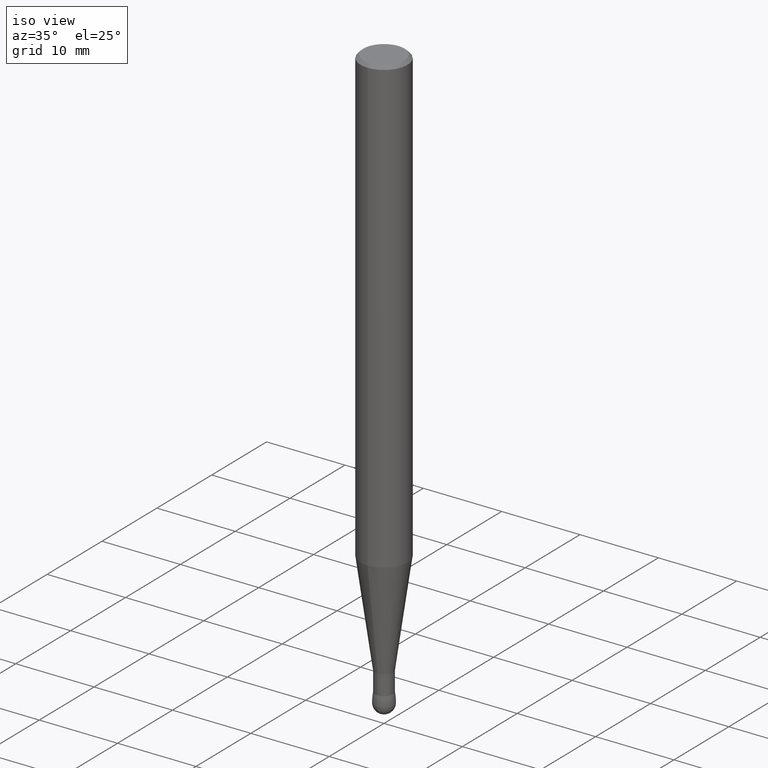
[diagram: clean part render]
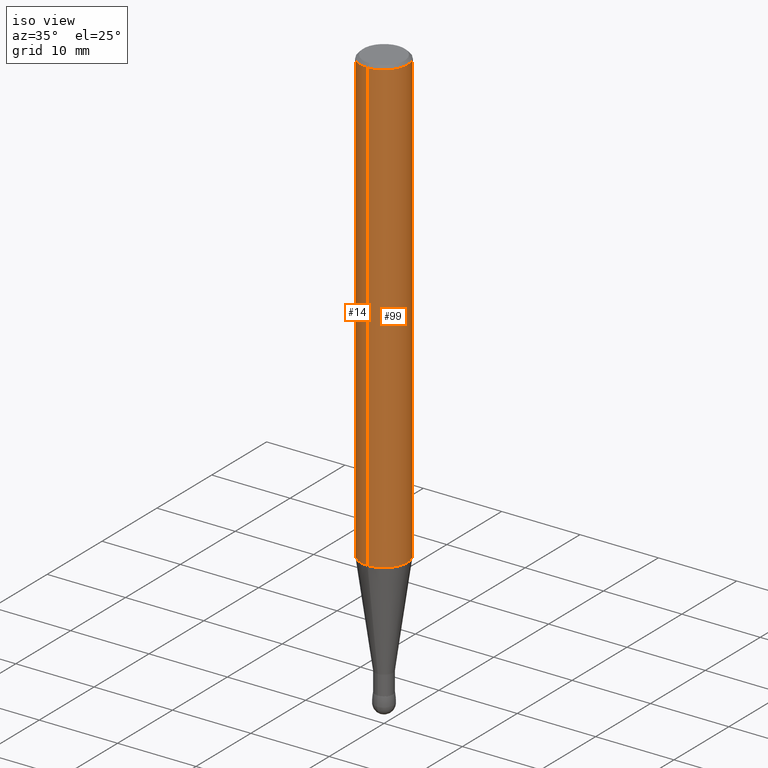
[diagram: same view with one multi-face feature highlighted, each face labeled with its STEP entity id]
A machine part, iso view. The highlighted faces form ONE feature: a constant-radius fillet chain: 2 tangent blend faces with common blend radius 2.9997 mm. The faces share edges in the B-rep.
Their STEP definitions:
[1] entity #14 (Cylinder):
#14 = ADVANCED_FACE ( 'NONE', ( #58 ), #180, .T. ) ;
#27 = VECTOR ( 'NONE', #48, 39.37007874015748143 ) ;
#39 = AXIS2_PLACEMENT_3D ( 'NONE', #195, #312, #464 ) ;
#40 = LINE ( 'NONE', #188, #307 ) ;
#48 = DIRECTION ( 'NONE',  ( 2.443143009213839704E-29, -3.494812012482185664E-15, -1.000000000000000000 ) ) ;
#56 = DIRECTION ( 'NONE',  ( 6.982962677686265922E-15, 1.000000000000000000, -3.487819265831422394E-15 ) ) ;
#58 = FACE_OUTER_BOUND ( 'NONE', #251, .T. ) ;
#92 = VERTEX_POINT ( 'NONE', #301 ) ;
#93 = CARTESIAN_POINT ( 'NONE',  ( 8.391509709327309522E-16, 0.1180999999999916700, -2.275166473293722458 ) ) ;
#94 = VERTEX_POINT ( 'NONE', #412 ) ;
#107 = DIRECTION ( 'NONE',  ( 2.443143009213839704E-29, -3.494812012482185664E-15, -1.000000000000000000 ) ) ;
#110 = ORIENTED_EDGE ( 'NONE', *, *, #348, .T. ) ;
#126 = ORIENTED_EDGE ( 'NONE', *, *, #226, .T. ) ;
#134 = CARTESIAN_POINT ( 'NONE',  ( -8.102248135367445696E-16, -0.1181000000000097527, -2.893699999999999051 ) ) ;
#152 = EDGE_CURVE ( 'NONE', #92, #238, #445, .T. ) ;
#160 = ORIENTED_EDGE ( 'NONE', *, *, #333, .F. ) ;
#180 = CYLINDRICAL_SURFACE ( 'NONE', #432, 0.1180999999999996358 ) ;
#188 = CARTESIAN_POINT ( 'NONE',  ( 8.246878922348163019E-16, 0.1180999999999895328, -2.893700000000000383 ) ) ;
#195 = CARTESIAN_POINT ( 'NONE',  ( 5.558557064025262488E-29, -7.951279121263629209E-15, -2.275166473293722014 ) ) ;
#226 = EDGE_CURVE ( 'NONE', #94, #398, #40, .T. ) ;
#238 = VERTEX_POINT ( 'NONE', #340 ) ;
#251 = EDGE_LOOP ( 'NONE', ( #397, #110, #126, #160 ) ) ;
#287 = CIRCLE ( 'NONE', #39, 0.1180999999999996636 ) ;
#297 = DIRECTION ( 'NONE',  ( 2.443143009213839704E-29, -3.494812012482185664E-15, -1.000000000000000000 ) ) ;
#301 = CARTESIAN_POINT ( 'NONE',  ( -8.102248135368149755E-16, -0.1180999999999996913, -0.01499999999999929168 ) ) ;
#307 = VECTOR ( 'NONE', #107, 39.37007874015748143 ) ;
#311 = CIRCLE ( 'NONE', #484, 0.1180999999999996358 ) ;
#312 = DIRECTION ( 'NONE',  ( 2.443143009213839704E-29, -3.494812012482185664E-15, -1.000000000000000000 ) ) ;
#333 = EDGE_CURVE ( 'NONE', #238, #398, #287, .T. ) ;
#335 = CARTESIAN_POINT ( 'NONE',  ( 7.069722925762087863E-29, -1.011293752051970024E-14, -2.893699999999999939 ) ) ;
#340 = CARTESIAN_POINT ( 'NONE',  ( -8.246878922346900841E-16, -0.1181000000000076156, -2.275166473293721570 ) ) ;
#348 = EDGE_CURVE ( 'NONE', #92, #94, #311, .T. ) ;
#397 = ORIENTED_EDGE ( 'NONE', *, *, #152, .F. ) ;
#398 = VERTEX_POINT ( 'NONE', #93 ) ;
#412 = CARTESIAN_POINT ( 'NONE',  ( 8.246878922347458960E-16, 0.1180999999999995942, -0.01500000000000011567 ) ) ;
#432 = AXIS2_PLACEMENT_3D ( 'NONE', #335, #297, #450 ) ;
#439 = DIRECTION ( 'NONE',  ( 2.443143009213839704E-29, -3.494812012482185664E-15, -1.000000000000000000 ) ) ;
#445 = LINE ( 'NONE', #134, #27 ) ;
#450 = DIRECTION ( 'NONE',  ( 6.982962677686265922E-15, 1.000000000000000000, -4.626330217890383536E-15 ) ) ;
#464 = DIRECTION ( 'NONE',  ( 6.982962677686265922E-15, 1.000000000000000000, -4.626330217890382747E-15 ) ) ;
#473 = CARTESIAN_POINT ( 'NONE',  ( 3.664714513820686793E-31, -5.242218018723174662E-17, -0.01499999999999970281 ) ) ;
#484 = AXIS2_PLACEMENT_3D ( 'NONE', #473, #439, #56 ) ;
[2] entity #99 (Cylinder):
#9 = EDGE_CURVE ( 'NONE', #94, #92, #176, .T. ) ;
#27 = VECTOR ( 'NONE', #48, 39.37007874015748143 ) ;
#40 = LINE ( 'NONE', #188, #307 ) ;
#48 = DIRECTION ( 'NONE',  ( 2.443143009213839704E-29, -3.494812012482185664E-15, -1.000000000000000000 ) ) ;
#51 = ORIENTED_EDGE ( 'NONE', *, *, #407, .F. ) ;
#70 = AXIS2_PLACEMENT_3D ( 'NONE', #487, #316, #277 ) ;
#71 = FACE_OUTER_BOUND ( 'NONE', #235, .T. ) ;
#76 = CARTESIAN_POINT ( 'NONE',  ( 3.664714513820686793E-31, -5.242218018723174662E-17, -0.01499999999999970281 ) ) ;
#87 = CIRCLE ( 'NONE', #462, 0.1180999999999996636 ) ;
#92 = VERTEX_POINT ( 'NONE', #301 ) ;
#93 = CARTESIAN_POINT ( 'NONE',  ( 8.391509709327309522E-16, 0.1180999999999916700, -2.275166473293722458 ) ) ;
#94 = VERTEX_POINT ( 'NONE', #412 ) ;
#97 = DIRECTION ( 'NONE',  ( 2.443143009213839704E-29, -3.494812012482185664E-15, -1.000000000000000000 ) ) ;
#99 = ADVANCED_FACE ( 'NONE', ( #71 ), #339, .T. ) ;
#107 = DIRECTION ( 'NONE',  ( 2.443143009213839704E-29, -3.494812012482185664E-15, -1.000000000000000000 ) ) ;
#134 = CARTESIAN_POINT ( 'NONE',  ( -8.102248135367445696E-16, -0.1181000000000097527, -2.893699999999999051 ) ) ;
#152 = EDGE_CURVE ( 'NONE', #92, #238, #445, .T. ) ;
#176 = CIRCLE ( 'NONE', #454, 0.1180999999999996358 ) ;
#188 = CARTESIAN_POINT ( 'NONE',  ( 8.246878922348163019E-16, 0.1180999999999895328, -2.893700000000000383 ) ) ;
#205 = ORIENTED_EDGE ( 'NONE', *, *, #152, .T. ) ;
#226 = EDGE_CURVE ( 'NONE', #94, #398, #40, .T. ) ;
#235 = EDGE_LOOP ( 'NONE', ( #306, #205, #51, #367 ) ) ;
#238 = VERTEX_POINT ( 'NONE', #340 ) ;
#255 = DIRECTION ( 'NONE',  ( 6.982962677686265922E-15, 1.000000000000000000, -3.487819265831422394E-15 ) ) ;
#277 = DIRECTION ( 'NONE',  ( 6.982962677686265922E-15, 1.000000000000000000, -4.626330217890383536E-15 ) ) ;
#301 = CARTESIAN_POINT ( 'NONE',  ( -8.102248135368149755E-16, -0.1180999999999996913, -0.01499999999999929168 ) ) ;
#306 = ORIENTED_EDGE ( 'NONE', *, *, #9, .T. ) ;
#307 = VECTOR ( 'NONE', #107, 39.37007874015748143 ) ;
#316 = DIRECTION ( 'NONE',  ( 2.443143009213839704E-29, -3.494812012482185664E-15, -1.000000000000000000 ) ) ;
#320 = CARTESIAN_POINT ( 'NONE',  ( 5.558557064025262488E-29, -7.951279121263629209E-15, -2.275166473293722014 ) ) ;
#339 = CYLINDRICAL_SURFACE ( 'NONE', #70, 0.1180999999999996358 ) ;
#340 = CARTESIAN_POINT ( 'NONE',  ( -8.246878922346900841E-16, -0.1181000000000076156, -2.275166473293721570 ) ) ;
#353 = DIRECTION ( 'NONE',  ( 6.982962677686265922E-15, 1.000000000000000000, -4.626330217890382747E-15 ) ) ;
#367 = ORIENTED_EDGE ( 'NONE', *, *, #226, .F. ) ;
#398 = VERTEX_POINT ( 'NONE', #93 ) ;
#407 = EDGE_CURVE ( 'NONE', #398, #238, #87, .T. ) ;
#412 = CARTESIAN_POINT ( 'NONE',  ( 8.246878922347458960E-16, 0.1180999999999995942, -0.01500000000000011567 ) ) ;
#445 = LINE ( 'NONE', #134, #27 ) ;
#454 = AXIS2_PLACEMENT_3D ( 'NONE', #76, #97, #255 ) ;
#462 = AXIS2_PLACEMENT_3D ( 'NONE', #320, #475, #353 ) ;
#475 = DIRECTION ( 'NONE',  ( 2.443143009213839704E-29, -3.494812012482185664E-15, -1.000000000000000000 ) ) ;
#487 = CARTESIAN_POINT ( 'NONE',  ( 7.069722925762087863E-29, -1.011293752051970024E-14, -2.893699999999999939 ) ) ;